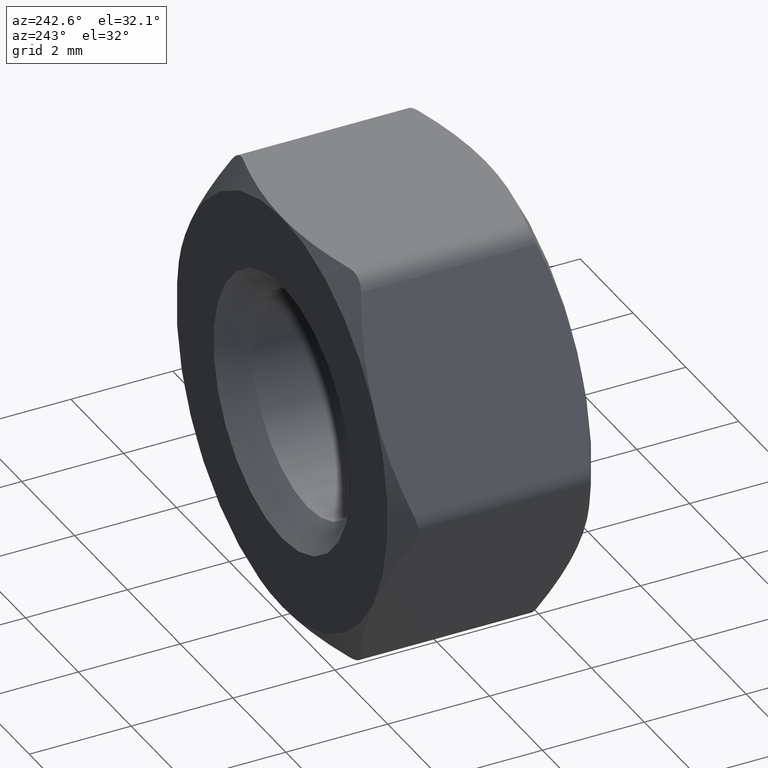
[diagram: clean part render]
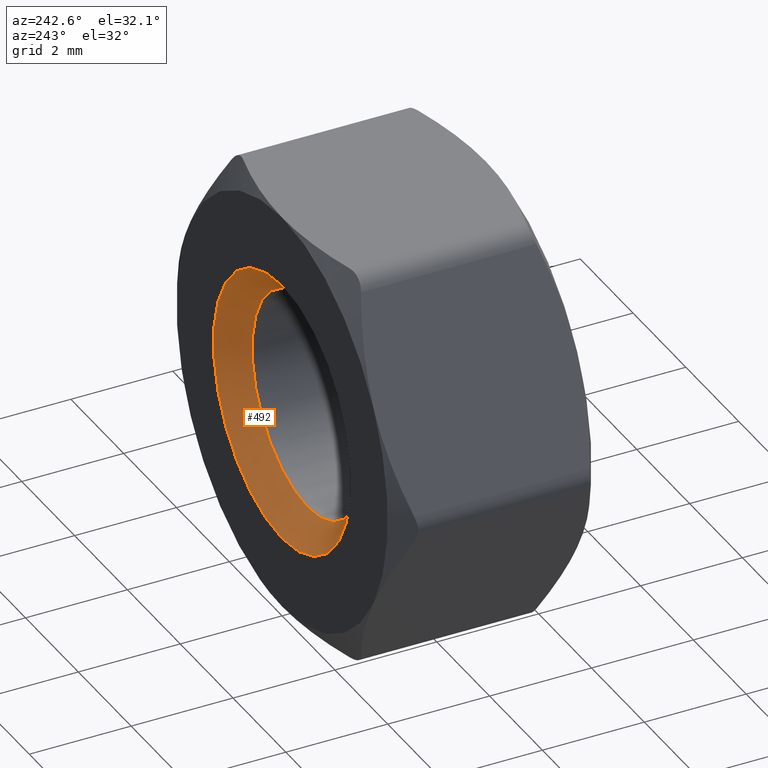
[diagram: same view with one face highlighted and labeled with its STEP entity id]
A machine part, auxiliary view. The second image highlights one B-rep face of the part: STEP entity #492.
In plain terms, the highlighted conical surface has half-angle 45 deg.
Its self-contained STEP definition (entity closure, byte-faithful):
#305 = AXIS2_PLACEMENT_3D ( 'NONE', #1298, #1457, #1171 ) ;
#314 = CARTESIAN_POINT ( 'NONE',  ( 0.0000000000000000000, 2.000000000000000000, 2.600000000000000100 ) ) ;
#462 = CIRCLE ( 'NONE', #1134, 2.600000000000000100 ) ;
#492 = ADVANCED_FACE ( 'NONE', ( #1764, #1878 ), #895, .F. ) ;
#545 = CARTESIAN_POINT ( 'NONE',  ( 0.0000000000000000000, 1.499999999999999100, 0.0000000000000000000 ) ) ;
#688 = DIRECTION ( 'NONE',  ( 0.0000000000000000000, 1.000000000000000000, 0.0000000000000000000 ) ) ;
#730 = EDGE_CURVE ( 'NONE', #833, #833, #462, .T. ) ;
#741 = DIRECTION ( 'NONE',  ( -0.0000000000000000000, -1.000000000000000000, -0.0000000000000000000 ) ) ;
#833 = VERTEX_POINT ( 'NONE', #314 ) ;
#895 = CONICAL_SURFACE ( 'NONE', #305, 2.099999999999998300, 0.7853981633974491700 ) ;
#974 = EDGE_LOOP ( 'NONE', ( #1453 ) ) ;
#1049 = ORIENTED_EDGE ( 'NONE', *, *, #1436, .F. ) ;
#1057 = CARTESIAN_POINT ( 'NONE',  ( 0.0000000000000000000, 2.000000000000000000, 0.0000000000000000000 ) ) ;
#1133 = VERTEX_POINT ( 'NONE', #1787 ) ;
#1134 = AXIS2_PLACEMENT_3D ( 'NONE', #1057, #741, #1633 ) ;
#1171 = DIRECTION ( 'NONE',  ( 0.0000000000000000000, 0.0000000000000000000, 1.000000000000000000 ) ) ;
#1298 = CARTESIAN_POINT ( 'NONE',  ( 0.0000000000000000000, 1.499999999999999100, 0.0000000000000000000 ) ) ;
#1307 = CIRCLE ( 'NONE', #1712, 2.099999999999998300 ) ;
#1435 = DIRECTION ( 'NONE',  ( 0.0000000000000000000, 0.0000000000000000000, 1.000000000000000000 ) ) ;
#1436 = EDGE_CURVE ( 'NONE', #1133, #1133, #1307, .T. ) ;
#1453 = ORIENTED_EDGE ( 'NONE', *, *, #730, .F. ) ;
#1457 = DIRECTION ( 'NONE',  ( 0.0000000000000000000, 1.000000000000000000, 0.0000000000000000000 ) ) ;
#1633 = DIRECTION ( 'NONE',  ( 0.0000000000000000000, 0.0000000000000000000, 1.000000000000000000 ) ) ;
#1672 = EDGE_LOOP ( 'NONE', ( #1049 ) ) ;
#1712 = AXIS2_PLACEMENT_3D ( 'NONE', #545, #688, #1435 ) ;
#1764 = FACE_OUTER_BOUND ( 'NONE', #974, .T. ) ;
#1787 = CARTESIAN_POINT ( 'NONE',  ( 0.0000000000000000000, 1.499999999999999100, 2.099999999999998300 ) ) ;
#1878 = FACE_BOUND ( 'NONE', #1672, .T. ) ;